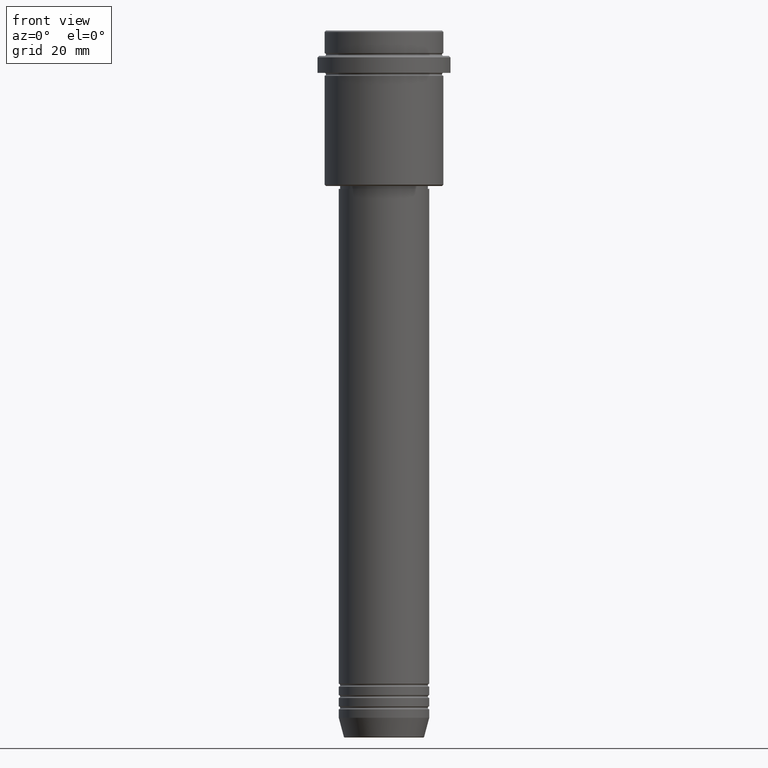
[diagram: clean part render]
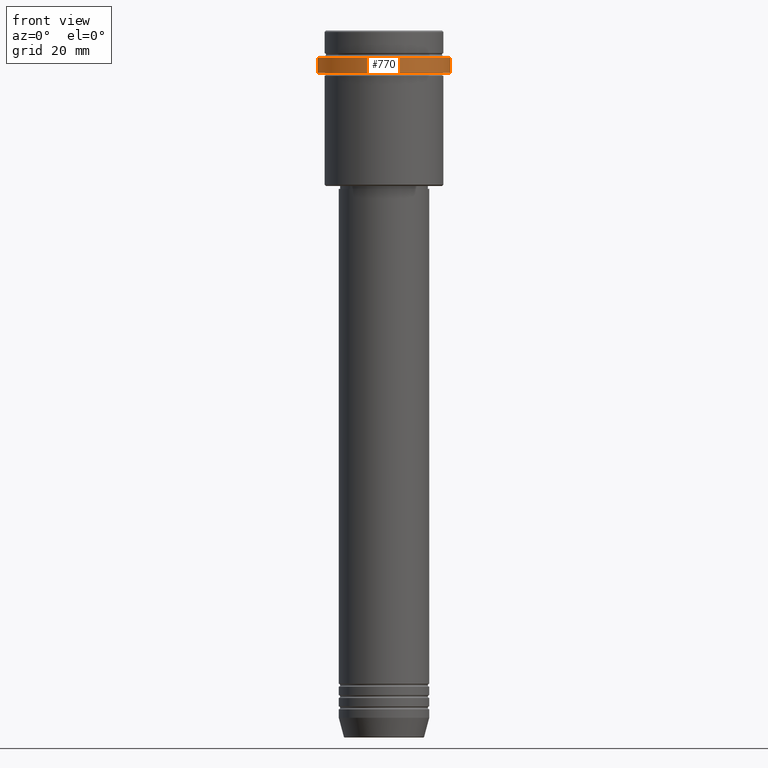
[diagram: same view with one face highlighted and labeled with its STEP entity id]
A machine part, front view. The second image highlights one B-rep face of the part: STEP entity #770.
In plain terms, the highlighted cylindrical surface (partial cylindrical patch) has radius 23.5 mm, axis along (-0, -0, 1).
Its self-contained STEP definition (entity closure, byte-faithful):
#1 = LINE ( 'NONE', #1322, #873 ) ;
#2 = EDGE_CURVE ( 'NONE', #697, #1407, #869, .T. ) ;
#19 = ORIENTED_EDGE ( 'NONE', *, *, #2, .T. ) ;
#31 = AXIS2_PLACEMENT_3D ( 'NONE', #646, #232, #671 ) ;
#62 = DIRECTION ( 'NONE',  ( -0.000000000000000000, -0.000000000000000000, 1.000000000000000000 ) ) ;
#72 = CARTESIAN_POINT ( 'NONE',  ( 23.50000000000000000, 0.000000000000000000, 0.000000000000000000 ) ) ;
#115 = CARTESIAN_POINT ( 'NONE',  ( -23.50000000000000000, 2.877919977996280320E-15, -9.499999999999946709 ) ) ;
#187 = FACE_OUTER_BOUND ( 'NONE', #653, .T. ) ;
#205 = EDGE_CURVE ( 'NONE', #1202, #1407, #1, .T. ) ;
#232 = DIRECTION ( 'NONE',  ( 0.000000000000000000, 0.000000000000000000, -1.000000000000000000 ) ) ;
#294 = CARTESIAN_POINT ( 'NONE',  ( 0.000000000000000000, 0.000000000000000000, 0.000000000000000000 ) ) ;
#382 = CIRCLE ( 'NONE', #1255, 23.50000000000000355 ) ;
#391 = LINE ( 'NONE', #72, #603 ) ;
#537 = VERTEX_POINT ( 'NONE', #862 ) ;
#603 = VECTOR ( 'NONE', #62, 1000.000000000000000 ) ;
#623 = DIRECTION ( 'NONE',  ( 1.000000000000000000, 0.000000000000000000, 0.000000000000000000 ) ) ;
#646 = CARTESIAN_POINT ( 'NONE',  ( 0.000000000000000000, 0.000000000000000000, -9.499999999999946709 ) ) ;
#653 = EDGE_LOOP ( 'NONE', ( #1082, #1137, #1326, #19 ) ) ;
#671 = DIRECTION ( 'NONE',  ( 1.000000000000000000, 0.000000000000000000, 0.000000000000000000 ) ) ;
#681 = DIRECTION ( 'NONE',  ( -0.000000000000000000, -0.000000000000000000, 1.000000000000000000 ) ) ;
#697 = VERTEX_POINT ( 'NONE', #923 ) ;
#717 = CARTESIAN_POINT ( 'NONE',  ( 0.000000000000000000, 0.000000000000000000, -15.00000000000000178 ) ) ;
#741 = CARTESIAN_POINT ( 'NONE',  ( -23.50000000000000711, 2.877919977996281109E-15, -15.00000000000000178 ) ) ;
#770 = ADVANCED_FACE ( 'NONE', ( #187 ), #1401, .T. ) ;
#835 = DIRECTION ( 'NONE',  ( 1.000000000000000000, 0.000000000000000000, 0.000000000000000000 ) ) ;
#843 = EDGE_CURVE ( 'NONE', #1202, #537, #382, .T. ) ;
#845 = DIRECTION ( 'NONE',  ( -0.000000000000000000, -0.000000000000000000, 1.000000000000000000 ) ) ;
#862 = CARTESIAN_POINT ( 'NONE',  ( 23.50000000000000355, 0.000000000000000000, -15.00000000000000178 ) ) ;
#869 = CIRCLE ( 'NONE', #31, 23.50000000000000000 ) ;
#873 = VECTOR ( 'NONE', #681, 1000.000000000000000 ) ;
#901 = AXIS2_PLACEMENT_3D ( 'NONE', #294, #845, #835 ) ;
#923 = CARTESIAN_POINT ( 'NONE',  ( 23.50000000000000000, 0.000000000000000000, -9.499999999999946709 ) ) ;
#1018 = EDGE_CURVE ( 'NONE', #537, #697, #391, .T. ) ;
#1082 = ORIENTED_EDGE ( 'NONE', *, *, #205, .F. ) ;
#1137 = ORIENTED_EDGE ( 'NONE', *, *, #843, .T. ) ;
#1170 = DIRECTION ( 'NONE',  ( -0.000000000000000000, -0.000000000000000000, 1.000000000000000000 ) ) ;
#1202 = VERTEX_POINT ( 'NONE', #741 ) ;
#1255 = AXIS2_PLACEMENT_3D ( 'NONE', #717, #1170, #623 ) ;
#1322 = CARTESIAN_POINT ( 'NONE',  ( -23.50000000000000000, 2.877919977996280320E-15, 0.000000000000000000 ) ) ;
#1326 = ORIENTED_EDGE ( 'NONE', *, *, #1018, .T. ) ;
#1401 = CYLINDRICAL_SURFACE ( 'NONE', #901, 23.50000000000000000 ) ;
#1407 = VERTEX_POINT ( 'NONE', #115 ) ;